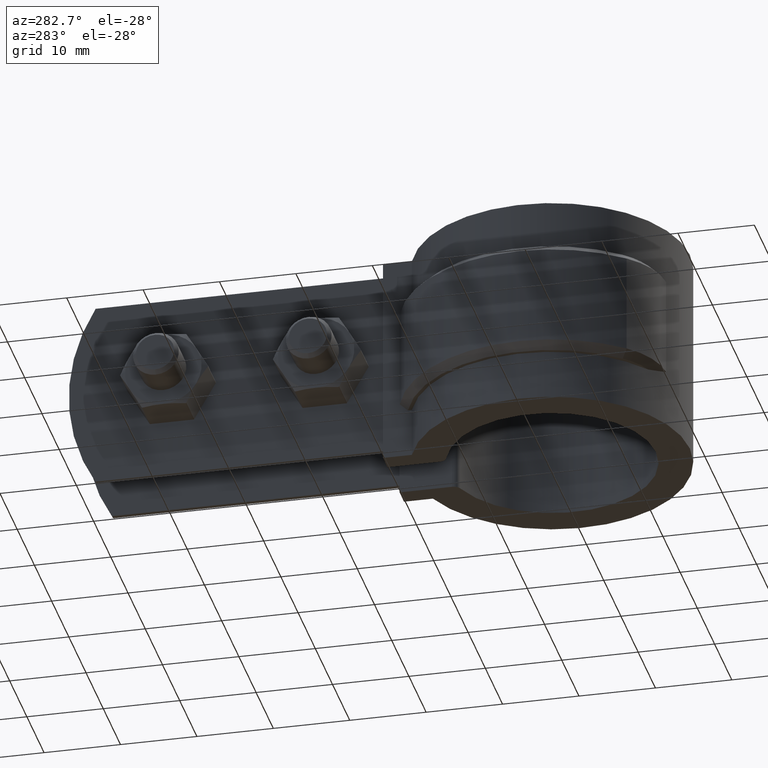
[diagram: clean part render]
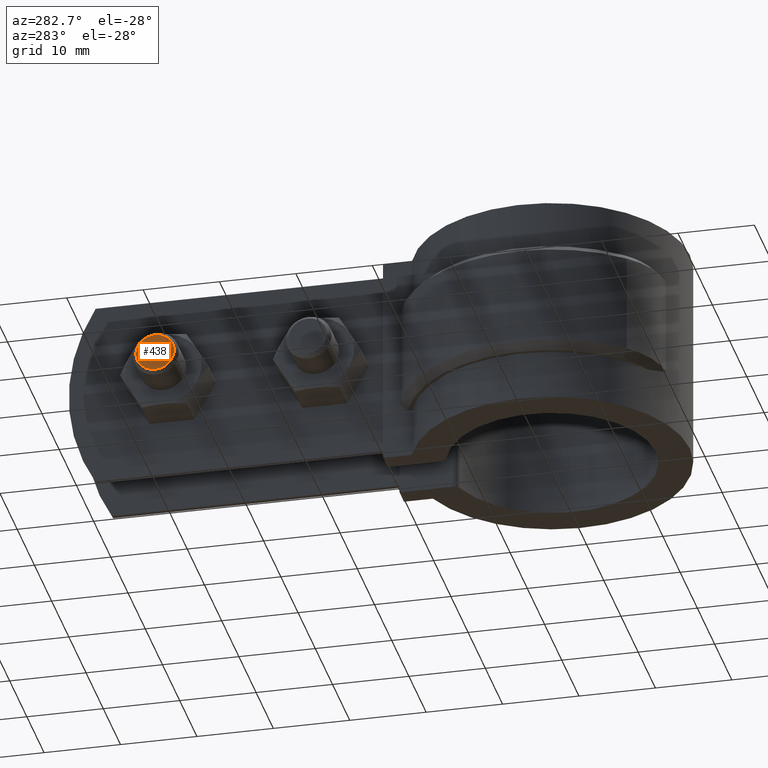
[diagram: same view with one face highlighted and labeled with its STEP entity id]
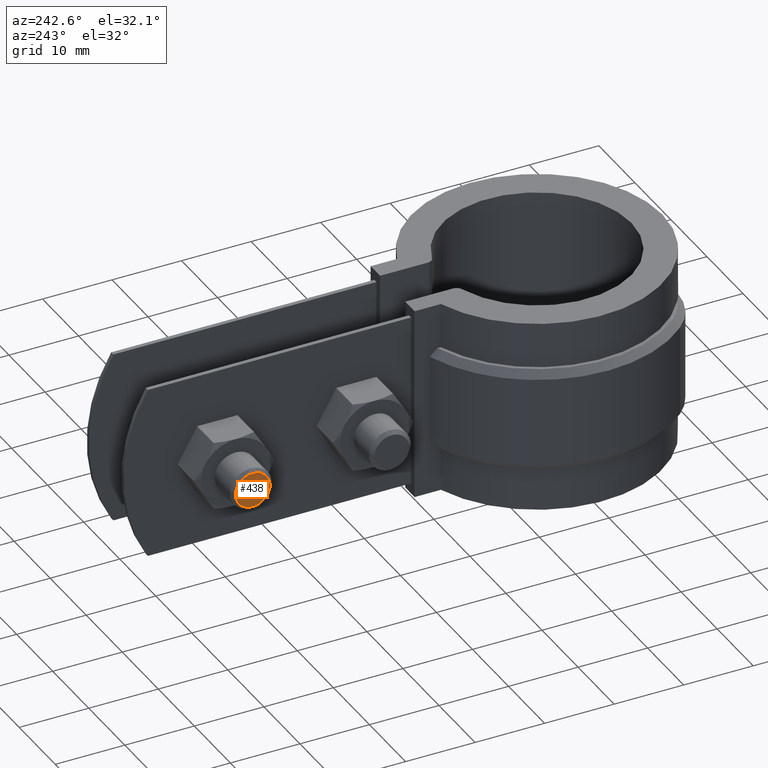
[diagram: same view with one face highlighted and labeled with its STEP entity id]
A machine part, auxiliary view. The second image highlights one B-rep face of the part: STEP entity #438.
A second angle (auxiliary view) of the same face is appended — the face is thin or edge-on in the first view.
In plain terms, the highlighted planar face has unit normal (1, 0, 0).
Its self-contained STEP definition (entity closure, byte-faithful):
#438 = ADVANCED_FACE( '', ( #765 ), #766, .F. );
#765 = FACE_OUTER_BOUND( '', #1551, .T. );
#766 = PLANE( '', #1552 );
#1551 = EDGE_LOOP( '', ( #3366 ) );
#1552 = AXIS2_PLACEMENT_3D( '', #3367, #3368, #3369 );
#3366 = ORIENTED_EDGE( '', *, *, #4187, .T. );
#3367 = CARTESIAN_POINT( '', ( -14.8999999999918, 48.5992907623043, -12.5000000000000 ) );
#3368 = DIRECTION( '', ( 1.00000000000000, 3.39587965456385E-072, 0.000000000000000 ) );
#3369 = DIRECTION( '', ( 0.000000000000000, 0.000000000000000, -1.00000000000000 ) );
#4187 = EDGE_CURVE( '', #4922, #4922, #4923, .F. );
#4922 = VERTEX_POINT( '', #7293 );
#4923 = CIRCLE( '', #7294, 2.49999999999948 );
#7293 = CARTESIAN_POINT( '', ( -14.8999999999918, 48.5992907623043, -14.9999999999995 ) );
#7294 = AXIS2_PLACEMENT_3D( '', #8129, #8130, #8131 );
#8129 = CARTESIAN_POINT( '', ( -14.8999999999918, 48.5992907623043, -12.5000000000000 ) );
#8130 = DIRECTION( '', ( 1.00000000000000, 3.39587965456384E-072, 0.000000000000000 ) );
#8131 = DIRECTION( '', ( 0.000000000000000, 0.000000000000000, -1.00000000000000 ) );